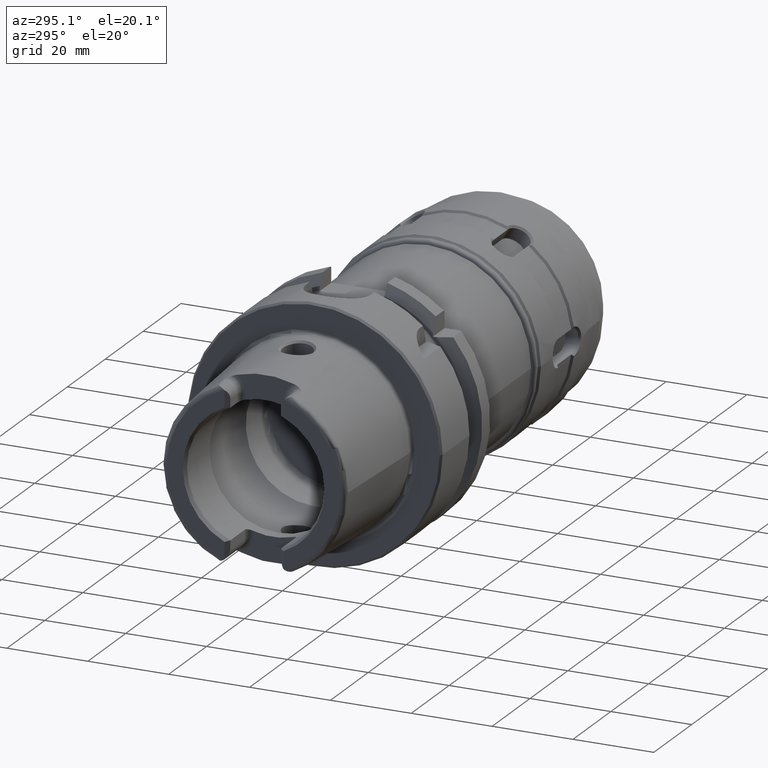
[diagram: clean part render]
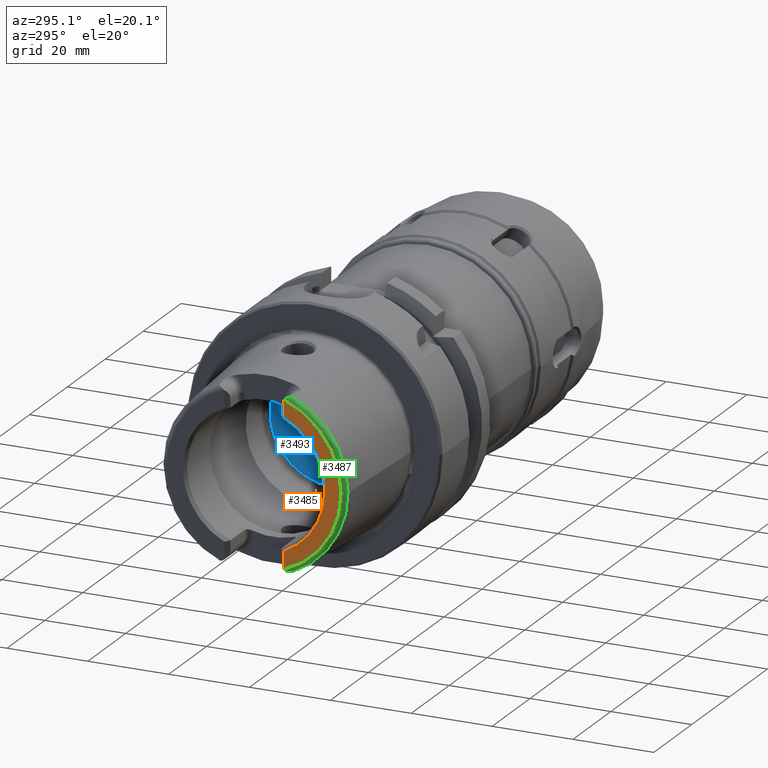
[diagram: same view with three faces highlighted in distinct colors, each labeled with its STEP entity id]
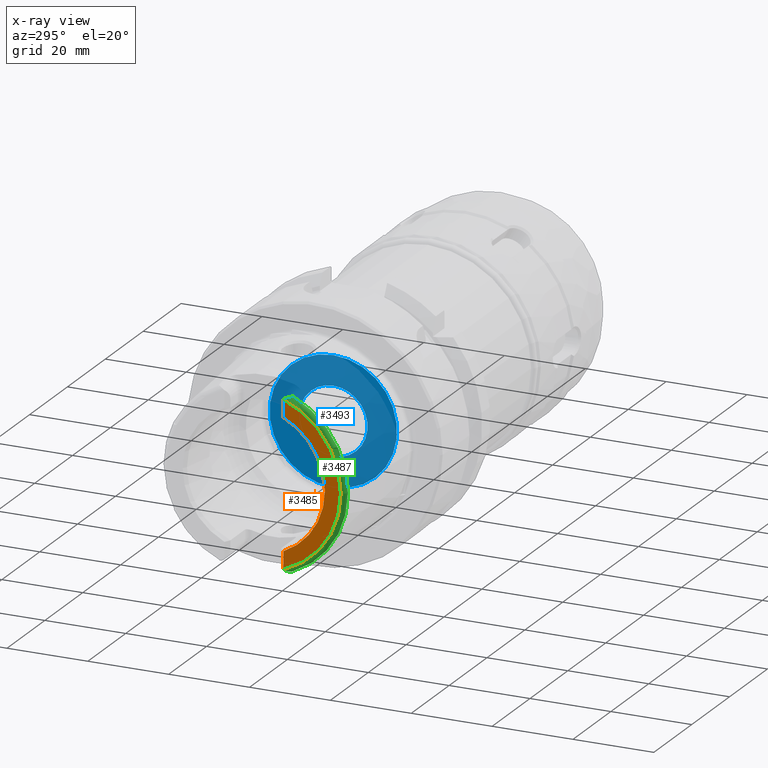
[diagram: x-ray of the same camera — body ghosted, the three highlighted faces saturated]
A machine part, auxiliary view with three faces highlighted in distinct colors.
The next image is the same camera in x-ray (body ghosted, the three faces saturated) — at least one of them is partly hidden behind the body in this view.
Their STEP definitions:

[orange] entity #3485 — the highlighted planar face has unit normal (-1, 0, -0).
#329=PLANE('',#3866);
#457=FACE_OUTER_BOUND('',#671,.T.);
#671=EDGE_LOOP('',(#2769,#2770,#2771,#2772,#2773,#2774));
#795=LINE('',#5094,#976);
#808=LINE('',#5207,#989);
#976=VECTOR('',#4131,10.);
#989=VECTOR('',#4178,10.);
#1166=CIRCLE('',#3699,2.88);
#1170=CIRCLE('',#3714,2.88);
#1246=CIRCLE('',#3867,21.5760400159857);
#1247=CIRCLE('',#3868,17.5773502691896);
#1360=VERTEX_POINT('',#5091);
#1361=VERTEX_POINT('',#5093);
#1368=VERTEX_POINT('',#5126);
#1381=VERTEX_POINT('',#5200);
#1384=VERTEX_POINT('',#5205);
#1387=VERTEX_POINT('',#5215);
#1722=EDGE_CURVE('',#1360,#1361,#795,.T.);
#1731=EDGE_CURVE('',#1360,#1368,#1166,.T.);
#1750=EDGE_CURVE('',#1384,#1381,#808,.T.);
#1754=EDGE_CURVE('',#1387,#1381,#1170,.T.);
#1974=EDGE_CURVE('',#1387,#1368,#1246,.T.);
#1975=EDGE_CURVE('',#1361,#1384,#1247,.T.);
#2769=ORIENTED_EDGE('',*,*,#1722,.F.);
#2770=ORIENTED_EDGE('',*,*,#1731,.T.);
#2771=ORIENTED_EDGE('',*,*,#1974,.F.);
#2772=ORIENTED_EDGE('',*,*,#1754,.T.);
#2773=ORIENTED_EDGE('',*,*,#1750,.F.);
#2774=ORIENTED_EDGE('',*,*,#1975,.F.);
#3485=ADVANCED_FACE('',(#457),#329,.T.);
#3699=AXIS2_PLACEMENT_3D('',#5139,#4143,#4144);
#3714=AXIS2_PLACEMENT_3D('',#5216,#4186,#4187);
#3866=AXIS2_PLACEMENT_3D('',#6420,#4564,#4565);
#3867=AXIS2_PLACEMENT_3D('',#6421,#4566,#4567);
#3868=AXIS2_PLACEMENT_3D('',#6422,#4568,#4569);
#4131=DIRECTION('',(0.,0.,1.));
#4143=DIRECTION('center_axis',(-1.,0.,0.));
#4144=DIRECTION('ref_axis',(0.,-1.,0.));
#4178=DIRECTION('',(0.,1.58830189502884E-16,1.));
#4186=DIRECTION('center_axis',(-1.,0.,0.));
#4187=DIRECTION('ref_axis',(0.,0.453346760926795,-0.891334232685576));
#4564=DIRECTION('center_axis',(-1.,0.,0.));
#4565=DIRECTION('ref_axis',(0.,0.,1.));
#4566=DIRECTION('center_axis',(1.,0.,0.));
#4567=DIRECTION('ref_axis',(0.,0.,-1.));
#4568=DIRECTION('center_axis',(-1.,0.,0.));
#4569=DIRECTION('ref_axis',(0.,-1.,0.));
#5091=CARTESIAN_POINT('',(-32.,-7.27,-20.1717424229271));
#5093=CARTESIAN_POINT('',(-32.,-7.27,-16.003447831195));
#5094=CARTESIAN_POINT('',(-32.,-7.27,-8.995));
#5126=CARTESIAN_POINT('',(-32.,-7.39118810947246,-20.2705658801576));
#5139=CARTESIAN_POINT('Origin',(-32.,-9.15,-17.99));
#5200=CARTESIAN_POINT('',(-32.,-7.26999999999999,20.1717424229271));
#5205=CARTESIAN_POINT('',(-32.,-7.26999999999999,16.003447831195));
#5207=CARTESIAN_POINT('',(-32.,-7.27,5.5));
#5215=CARTESIAN_POINT('',(-32.,-7.39118810947246,20.2705658801576));
#5216=CARTESIAN_POINT('Origin',(-32.,-9.15,17.99));
#6420=CARTESIAN_POINT('Origin',(-32.,21.5760400159857,0.));
#6421=CARTESIAN_POINT('Origin',(-32.,0.,0.));
#6422=CARTESIAN_POINT('Origin',(-32.,0.,0.));

[blue] entity #3493 — the highlighted planar face has unit normal (1, -0, 0).
#280=FACE_BOUND('',#682,.T.);
#332=PLANE('',#3883);
#465=FACE_OUTER_BOUND('',#681,.T.);
#681=EDGE_LOOP('',(#2803));
#682=EDGE_LOOP('',(#2804));
#1248=CIRCLE('',#3872,8.458734);
#1255=CIRCLE('',#3884,15.75);
#1526=VERTEX_POINT('',#6426);
#1532=VERTEX_POINT('',#6446);
#1976=EDGE_CURVE('',#1526,#1526,#1248,.T.);
#1985=EDGE_CURVE('',#1532,#1532,#1255,.T.);
#2803=ORIENTED_EDGE('',*,*,#1985,.T.);
#2804=ORIENTED_EDGE('',*,*,#1976,.T.);
#3493=ADVANCED_FACE('',(#465,#280),#332,.F.);
#3872=AXIS2_PLACEMENT_3D('',#6427,#4576,#4577);
#3883=AXIS2_PLACEMENT_3D('',#6445,#4600,#4601);
#3884=AXIS2_PLACEMENT_3D('',#6447,#4602,#4603);
#4576=DIRECTION('center_axis',(1.,0.,0.));
#4577=DIRECTION('ref_axis',(0.,0.,1.));
#4600=DIRECTION('center_axis',(1.,0.,0.));
#4601=DIRECTION('ref_axis',(0.,0.,-1.));
#4602=DIRECTION('center_axis',(-1.,0.,0.));
#4603=DIRECTION('ref_axis',(0.,0.,1.));
#6426=CARTESIAN_POINT('',(10.,-1.03589615179389E-15,-8.458734));
#6427=CARTESIAN_POINT('Origin',(10.,0.,0.));
#6445=CARTESIAN_POINT('Origin',(10.,15.75,0.));
#6446=CARTESIAN_POINT('',(10.,-1.92881870865708E-15,-15.75));
#6447=CARTESIAN_POINT('Origin',(10.,0.,0.));

[green] entity #3487 — the highlighted toroidal blend (fillet) surface has major radius 21.576 mm and minor (blend) radius 1.2 mm.
#45=TOROIDAL_SURFACE('',#3870,21.5760400159857,1.2);
#96=B_SPLINE_CURVE_WITH_KNOTS('',3,(#5127,#5128,#5129,#5130,#5131,#5132,
#5133,#5134,#5135,#5136,#5137,#5138),.UNSPECIFIED.,.F.,.F.,(4,2,2,2,2,4),
(-0.196612183526961,-0.162100751777108,-0.0988537843219417,-0.0492481970353068,
-0.0201985054494333,0.),.UNSPECIFIED.);
#99=B_SPLINE_CURVE_WITH_KNOTS('',3,(#5218,#5219,#5220,#5221,#5222,#5223,
#5224,#5225,#5226,#5227,#5228,#5229),.UNSPECIFIED.,.F.,.F.,(4,2,2,2,2,4),
(-0.440016298339346,-0.413819168091726,-0.38684223146412,-0.314176502280688,
-0.242048966230796,-0.191409762337977),.UNSPECIFIED.);
#459=FACE_OUTER_BOUND('',#673,.T.);
#673=EDGE_LOOP('',(#2780,#2781,#2782,#2783,#2784));
#1175=CIRCLE('',#3725,22.7745368271334);
#1179=CIRCLE('',#3729,22.7745368271334);
#1246=CIRCLE('',#3867,21.5760400159857);
#1367=VERTEX_POINT('',#5107);
#1368=VERTEX_POINT('',#5126);
#1387=VERTEX_POINT('',#5215);
#1388=VERTEX_POINT('',#5217);
#1403=VERTEX_POINT('',#5418);
#1730=EDGE_CURVE('',#1368,#1367,#96,.T.);
#1755=EDGE_CURVE('',#1388,#1387,#99,.T.);
#1775=EDGE_CURVE('',#1403,#1367,#1175,.T.);
#1787=EDGE_CURVE('',#1388,#1403,#1179,.T.);
#1974=EDGE_CURVE('',#1387,#1368,#1246,.T.);
#2780=ORIENTED_EDGE('',*,*,#1755,.T.);
#2781=ORIENTED_EDGE('',*,*,#1974,.T.);
#2782=ORIENTED_EDGE('',*,*,#1730,.T.);
#2783=ORIENTED_EDGE('',*,*,#1775,.F.);
#2784=ORIENTED_EDGE('',*,*,#1787,.F.);
#3487=ADVANCED_FACE('',(#459),#45,.T.);
#3725=AXIS2_PLACEMENT_3D('',#5420,#4215,#4216);
#3729=AXIS2_PLACEMENT_3D('',#5524,#4223,#4224);
#3867=AXIS2_PLACEMENT_3D('',#6421,#4566,#4567);
#3870=AXIS2_PLACEMENT_3D('',#6424,#4572,#4573);
#4215=DIRECTION('center_axis',(1.,0.,0.));
#4216=DIRECTION('ref_axis',(0.,0.,-1.));
#4223=DIRECTION('center_axis',(1.,0.,0.));
#4224=DIRECTION('ref_axis',(0.,0.,-1.));
#4566=DIRECTION('center_axis',(1.,0.,0.));
#4567=DIRECTION('ref_axis',(0.,0.,-1.));
#4572=DIRECTION('center_axis',(1.,0.,0.));
#4573=DIRECTION('ref_axis',(0.,0.,-1.));
#5107=CARTESIAN_POINT('',(-30.8600449304182,-9.1175788960984,-20.8698175067219));
#5126=CARTESIAN_POINT('',(-32.,-7.39118810947246,-20.2705658801576));
#5127=CARTESIAN_POINT('Ctrl Pts',(-32.,-7.39118810947247,-20.2705658801576));
#5128=CARTESIAN_POINT('Ctrl Pts',(-32.,-7.51057646079925,-20.3626402436877));
#5129=CARTESIAN_POINT('Ctrl Pts',(-31.9798323447024,-7.63713759811651,-20.4450895592776));
#5130=CARTESIAN_POINT('Ctrl Pts',(-31.8795915966629,-8.00411514663101,-20.6460540241957));
#5131=CARTESIAN_POINT('Ctrl Pts',(-31.7662291944519,-8.24534617868917,-20.7330636375648));
#5132=CARTESIAN_POINT('Ctrl Pts',(-31.5260503396065,-8.62641311167603,-20.8272571305318));
#5133=CARTESIAN_POINT('Ctrl Pts',(-31.4080214744472,-8.77500391332017,-20.8477181028241));
#5134=CARTESIAN_POINT('Ctrl Pts',(-31.2168511506693,-8.95347341138424,-20.8640491182849));
#5135=CARTESIAN_POINT('Ctrl Pts',(-31.1371144343332,-9.01480627610083,-20.8671499279665));
#5136=CARTESIAN_POINT('Ctrl Pts',(-30.9904836833853,-9.08806135889972,-20.8694907892639));
#5137=CARTESIAN_POINT('Ctrl Pts',(-30.9268776870879,-9.10942530024495,-20.8697257132045));
#5138=CARTESIAN_POINT('Ctrl Pts',(-30.8600449304182,-9.11757889609838,-20.8698175067219));
#5215=CARTESIAN_POINT('',(-32.,-7.39118810947246,20.2705658801576));
#5217=CARTESIAN_POINT('',(-30.8600449304182,-9.1175788960984,20.8698175067219));
#5218=CARTESIAN_POINT('Ctrl Pts',(-30.8600449304182,-9.11757889609839,20.8698175067219));
#5219=CARTESIAN_POINT('Ctrl Pts',(-30.9283853966267,-9.1092413596916,20.8697236423942));
#5220=CARTESIAN_POINT('Ctrl Pts',(-30.9933437959442,-9.08709005778456,20.8694809526083));
#5221=CARTESIAN_POINT('Ctrl Pts',(-31.1177754091763,-9.02396510410894,20.8674193162914));
#5222=CARTESIAN_POINT('Ctrl Pts',(-31.1770034834694,-8.98246838908717,20.8654817144325));
#5223=CARTESIAN_POINT('Ctrl Pts',(-31.3775872414353,-8.81520504288704,20.8530880014962));
#5224=CARTESIAN_POINT('Ctrl Pts',(-31.521057678942,-8.63827412284131,20.8318261586711));
#5225=CARTESIAN_POINT('Ctrl Pts',(-31.7694065050575,-8.23592790359805,20.7289177452773));
#5226=CARTESIAN_POINT('Ctrl Pts',(-31.8689043999789,-8.02084936775806,20.6497346714256));
#5227=CARTESIAN_POINT('Ctrl Pts',(-31.9746332690681,-7.66799906728034,20.4648878758955));
#5228=CARTESIAN_POINT('Ctrl Pts',(-32.,-7.52524774054413,20.3739549886328));
#5229=CARTESIAN_POINT('Ctrl Pts',(-32.,-7.39118810947247,20.2705658801576));
#5418=CARTESIAN_POINT('',(-30.8600449304182,-22.7745368271334,-2.78907636274124E-15));
#5420=CARTESIAN_POINT('Origin',(-30.8600449304182,0.,0.));
#5524=CARTESIAN_POINT('Origin',(-30.8600449304182,0.,0.));
#6421=CARTESIAN_POINT('Origin',(-32.,0.,0.));
#6424=CARTESIAN_POINT('Origin',(-30.8,0.,0.));